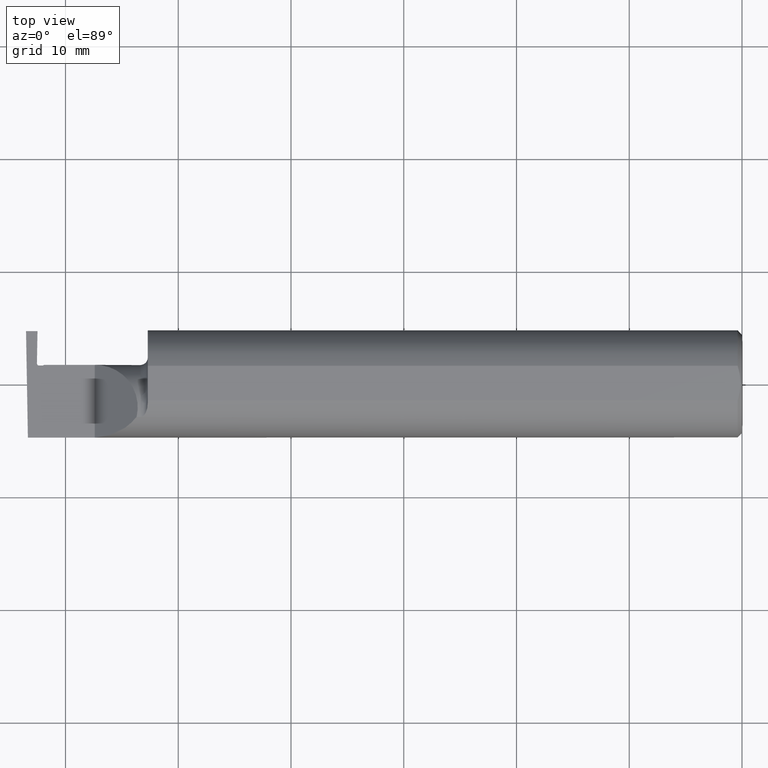
[diagram: clean part render]
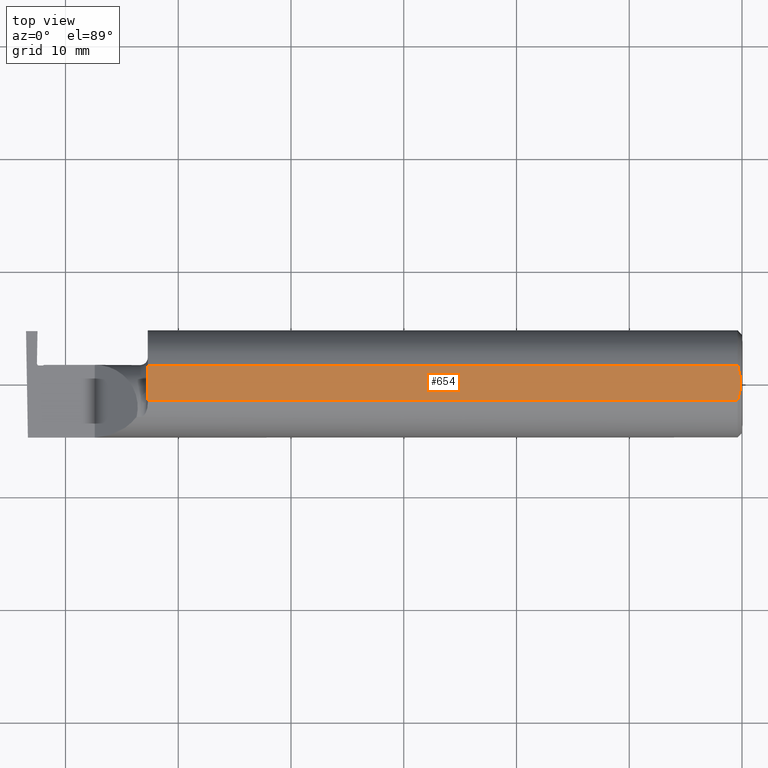
[diagram: same view with one face highlighted and labeled with its STEP entity id]
A machine part, top view. The second image highlights one B-rep face of the part: STEP entity #654.
In plain terms, the highlighted planar face has unit normal (0, 0, 1).
Its self-contained STEP definition (entity closure, byte-faithful):
#25 = LINE ( 'NONE', #176, #439 ) ;
#54 = CARTESIAN_POINT ( 'NONE',  ( -2.075000000000000178, 0.06039039658754216666, 0.1773499999999999799 ) ) ;
#59 = VECTOR ( 'NONE', #780, 39.37007874015748143 ) ;
#74 = EDGE_CURVE ( 'NONE', #375, #640, #25, .T. ) ;
#83 = VERTEX_POINT ( 'NONE', #244 ) ;
#98 = DIRECTION ( 'NONE',  ( 0.000000000000000000, 0.000000000000000000, 1.000000000000000000 ) ) ;
#100 = ORIENTED_EDGE ( 'NONE', *, *, #503, .F. ) ;
#135 = CARTESIAN_POINT ( 'NONE',  ( -0.01499999999999997689, -0.06039039658753697637, 0.1773499999999999799 ) ) ;
#138 = LINE ( 'NONE', #868, #452 ) ;
#144 = DIRECTION ( 'NONE',  ( -1.000000000000000000, 0.000000000000000000, 0.000000000000000000 ) ) ;
#145 = AXIS2_PLACEMENT_3D ( 'NONE', #523, #98, #807 ) ;
#159 = EDGE_CURVE ( 'NONE', #640, #538, #498, .T. ) ;
#176 = CARTESIAN_POINT ( 'NONE',  ( 0.000000000000000000, 0.06039039658753697637, 0.1773499999999999799 ) ) ;
#196 = CARTESIAN_POINT ( 'NONE',  ( -2.075000000000000178, -0.06039039658753699025, 0.1773499999999999799 ) ) ;
#202 = EDGE_CURVE ( 'NONE', #83, #408, #138, .T. ) ;
#244 = CARTESIAN_POINT ( 'NONE',  ( -0.01499999999999997689, -0.06039039658753697637, 0.1773499999999999799 ) ) ;
#262 = CARTESIAN_POINT ( 'NONE',  ( -0.009346310357820448653, 0.04072930668827414585, 0.1773500000000000354 ) ) ;
#265 = CARTESIAN_POINT ( 'NONE',  ( -0.004999999999999811887, -1.401839511422784198E-17, 0.1773499999999999799 ) ) ;
#282 = CARTESIAN_POINT ( 'NONE',  ( -0.004999999999999815356, -0.01026662907944663437, 0.1773500000000000354 ) ) ;
#290 = ORIENTED_EDGE ( 'NONE', *, *, #159, .F. ) ;
#305 = CARTESIAN_POINT ( 'NONE',  ( -0.01499999999999751879, 0.06039039658754215278, 0.1773499999999999799 ) ) ;
#341 = ORIENTED_EDGE ( 'NONE', *, *, #74, .F. ) ;
#355 = ORIENTED_EDGE ( 'NONE', *, *, #202, .F. ) ;
#371 = CARTESIAN_POINT ( 'NONE',  ( -0.009318557230853216633, -0.04061090184993780550, 0.1773500000000000354 ) ) ;
#375 = VERTEX_POINT ( 'NONE', #54 ) ;
#408 = VERTEX_POINT ( 'NONE', #196 ) ;
#411 = CARTESIAN_POINT ( 'NONE',  ( -0.005916828623699101758, 0.02060071390057606130, 0.1773499999999999799 ) ) ;
#439 = VECTOR ( 'NONE', #526, 39.37007874015748143 ) ;
#452 = VECTOR ( 'NONE', #144, 39.37007874015748143 ) ;
#485 = CARTESIAN_POINT ( 'NONE',  ( -0.01499999999999751879, 0.06039039658754215278, 0.1773499999999999799 ) ) ;
#498 = B_SPLINE_CURVE_WITH_KNOTS ( 'NONE', 3,
 ( #485, #908, #262, #411, #555, #633 ),
 .UNSPECIFIED., .F., .F.,
 ( 4, 2, 4 ),
 ( 0.004207325536406421491, 0.004979129323161655095, 0.005750933109916888698 ),
 .UNSPECIFIED. ) ;
#502 = CARTESIAN_POINT ( 'NONE',  ( -0.005896899252109323586, -0.02043863390046169598, 0.1773500000000000354 ) ) ;
#503 = EDGE_CURVE ( 'NONE', #408, #375, #728, .T. ) ;
#507 = CARTESIAN_POINT ( 'NONE',  ( -2.075000000000000178, -0.1873500000000000443, 0.1773499999999999799 ) ) ;
#523 = CARTESIAN_POINT ( 'NONE',  ( -2.500000000000000000, -0.1873500000000000165, 0.1773499999999999799 ) ) ;
#526 = DIRECTION ( 'NONE',  ( 1.000000000000000000, -0.000000000000000000, -0.000000000000000000 ) ) ;
#538 = VERTEX_POINT ( 'NONE', #887 ) ;
#555 = CARTESIAN_POINT ( 'NONE',  ( -0.004999999999999810152, 0.01027925662263851764, 0.1773499999999999799 ) ) ;
#595 = PLANE ( 'NONE',  #145 ) ;
#607 = B_SPLINE_CURVE_WITH_KNOTS ( 'NONE', 3,
 ( #265, #282, #502, #371, #641, #135 ),
 .UNSPECIFIED., .F., .F.,
 ( 4, 2, 4 ),
 ( 0.005750933109916888698, 0.006521788775031543001, 0.007292644440146196436 ),
 .UNSPECIFIED. ) ;
#626 = EDGE_LOOP ( 'NONE', ( #355, #635, #290, #341, #100 ) ) ;
#633 = CARTESIAN_POINT ( 'NONE',  ( -0.004999999999999811887, -1.401839511422784198E-17, 0.1773499999999999799 ) ) ;
#635 = ORIENTED_EDGE ( 'NONE', *, *, #790, .F. ) ;
#640 = VERTEX_POINT ( 'NONE', #305 ) ;
#641 = CARTESIAN_POINT ( 'NONE',  ( -0.01186375298701895613, -0.05066077215909271791, 0.1773499999999999521 ) ) ;
#654 = ADVANCED_FACE ( 'NONE', ( #744 ), #595, .T. ) ;
#728 = LINE ( 'NONE', #507, #59 ) ;
#744 = FACE_OUTER_BOUND ( 'NONE', #626, .T. ) ;
#780 = DIRECTION ( 'NONE',  ( 4.493171042210958884E-17, 1.000000000000000000, 0.000000000000000000 ) ) ;
#790 = EDGE_CURVE ( 'NONE', #538, #83, #607, .T. ) ;
#807 = DIRECTION ( 'NONE',  ( -1.000000000000000000, 0.000000000000000000, 0.000000000000000000 ) ) ;
#868 = CARTESIAN_POINT ( 'NONE',  ( 0.000000000000000000, -0.06039039658753697637, 0.1773499999999999799 ) ) ;
#887 = CARTESIAN_POINT ( 'NONE',  ( -0.004999999999999811887, -1.401839511422784198E-17, 0.1773499999999999799 ) ) ;
#908 = CARTESIAN_POINT ( 'NONE',  ( -0.01185291896084214418, 0.05062716160312497049, 0.1773499999999999521 ) ) ;